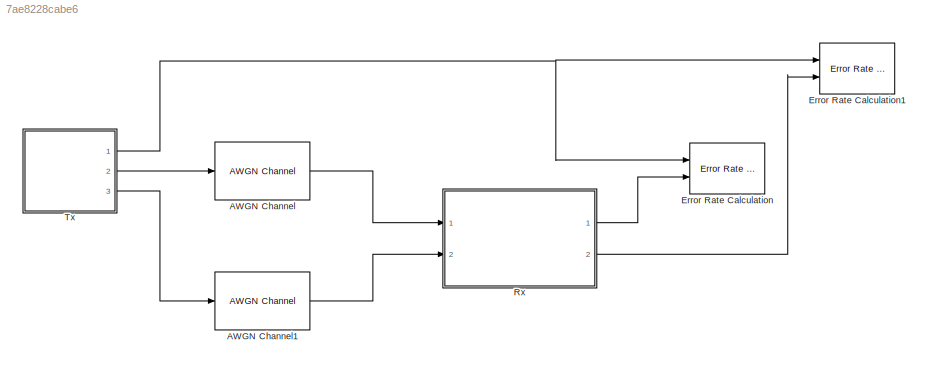
MODEL slx_7ae8228cabe6
KIND model
BLOCK [Reference] AWGN Channel  REF=commchan3/AWGN
Channel
  EbNodB = SNR
  EsNodB = 10
  InputProcessing = Columns as channels (frame based)
  Ports = [1, 1]
  Ps = 1
  SNRdB = 10
  SourceBlock = commchan3/AWGN\nChannel
  SourceType = AWGN Channel
  Tsym = 1/SymbolRate
  UserDataPersistent = on
  bitsPerSym = 2
  noiseMode = Signal to noise ratio  (Eb/No)
  seed = 67
  variance = 1
BLOCK [Reference] AWGN Channel1  REF=commchan3/AWGN
Channel
  EbNodB = SNR
  EsNodB = 10
  InputProcessing = Columns as channels (frame based)
  Ports = [1, 1]
  Ps = 1
  SNRdB = 10
  SourceBlock = commchan3/AWGN\nChannel
  SourceType = AWGN Channel
  Tsym = 1/SymbolRate
  UserDataPersistent = on
  bitsPerSym = 2
  noiseMode = Signal to noise ratio  (Eb/No)
  seed = 67
  variance = 1
BLOCK [Reference] Error Rate Calculation  REF=commsink2/Error Rate
Calculation
  N = 8
  PMode = Workspace
  Ports = [2]
  RsMode2 = off
  SourceBlock = commsink2/Error Rate\nCalculation
  SourceType = Error Rate Calculation
  WsName = BER2
  cp_mode = Entire frame
  maxBits = 1e6
  numErr = 100
  st_delay = 0
  stop = off
  subframe = []
BLOCK [Reference] Error Rate Calculation1  REF=commsink2/Error Rate
Calculation
  N = 0
  PMode = Workspace
  Ports = [2]
  RsMode2 = off
  SourceBlock = commsink2/Error Rate\nCalculation
  SourceType = Error Rate Calculation
  WsName = BER1
  cp_mode = Entire frame
  maxBits = 1e6
  numErr = 100
  st_delay = 0
  stop = off
  subframe = []
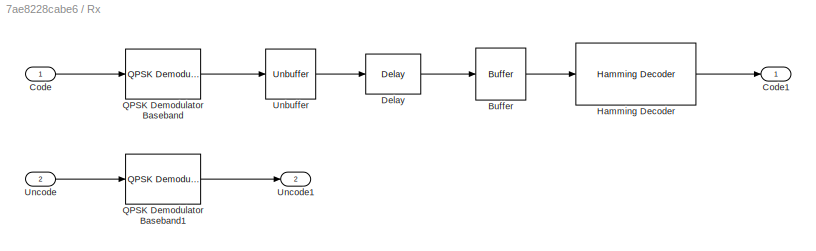
BLOCK [SubSystem] Rx
  Ports = [2, 2]
  RequestExecContextInheritance = off
BLOCK [Buffer] Rx/Buffer
  N = 7
  TreatMby1Signals = One channel
BLOCK [Inport] Rx/Code
  IconDisplay = Port number
BLOCK [Outport] Rx/Code1
  IconDisplay = Port number
BLOCK [Reference] Rx/Delay  REF=dspsigops/Delay
  InputProcessing = Columns as channels (frame based)
  Ports = [1, 1]
  SourceBlock = dspsigops/Delay
  SourceType = Delay
  UserDataPersistent = on
  delay = 5
  dif_ic_for_ch = off
  dif_ic_for_dly = off
  dly_unit = Samples
  ic = 0
  ic_detail = off
  reset_popup = None
BLOCK [Reference] Rx/Hamming Decoder  REF=commblkcod2/Hamming Decoder
  Ports = [1, 1]
  SourceBlock = commblkcod2/Hamming Decoder
  SourceType = Hamming Decoder
  k = gfprimfd(3,'min')
  n = 7
BLOCK [Reference] Rx/QPSK Demodulator Baseband  REF=commdigbbndpm3/QPSK
Demodulator
Baseband
  Dec = Gray
  DecType = Hard decision
  OutType = Bit
  Ph = pi/4
  Ports = [1, 1]
  SourceBlock = commdigbbndpm3/QPSK\nDemodulator\nBaseband
  SourceType = QPSK Demodulator Baseband
  VarSource = Dialog
  Variance = 1
  derotateFactorDTMode = Same word length as input
  derotateFactorWordLen = 16
  outDtype1 = Inherit via internal rule
  outDtype2 = Inherit via internal rule
BLOCK [Reference] Rx/QPSK Demodulator Baseband1  REF=commdigbbndpm3/QPSK
Demodulator
Baseband
  Dec = Gray
  DecType = Hard decision
  OutType = Bit
  Ph = pi/4
  Ports = [1, 1]
  SourceBlock = commdigbbndpm3/QPSK\nDemodulator\nBaseband
  SourceType = QPSK Demodulator Baseband
  VarSource = Dialog
  Variance = 1
  derotateFactorDTMode = Same word length as input
  derotateFactorWordLen = 16
  outDtype1 = Inherit via internal rule
  outDtype2 = Inherit via internal rule
BLOCK [Unbuffer] Rx/Unbuffer
  Ports = [1, 1]
  SampleBasedProcessing = Same as frame based
BLOCK [Inport] Rx/Uncode
  IconDisplay = Port number
  Port = 2
BLOCK [Outport] Rx/Uncode1
  IconDisplay = Port number
  Port = 2
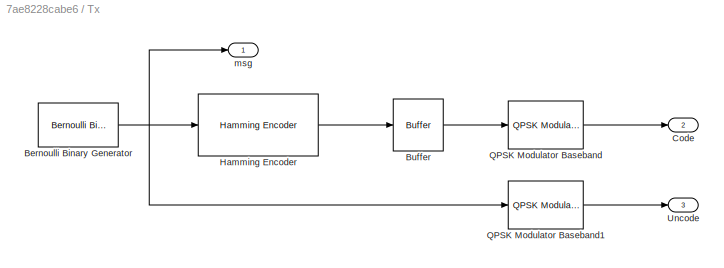
BLOCK [SubSystem] Tx
  Ports = [0, 3]
  RequestExecContextInheritance = off
BLOCK [Reference] Tx/Bernoulli Binary Generator  REF=commrandsrc2/Bernoulli Binary
Generator
  P = 0.5
  Ports = [0, 1]
  SourceBlock = commrandsrc2/Bernoulli Binary\nGenerator
  SourceType = Bernoulli Binary Generator
  Ts = 1/(2*SymbolRate)
  frameBased = on
  orient = off
  outDataType = double
  sampPerFrame = 4
  seed = 61
BLOCK [Buffer] Tx/Buffer
  N = 2
  TreatMby1Signals = One channel
BLOCK [Outport] Tx/Code
  IconDisplay = Port number
  Port = 2
BLOCK [Reference] Tx/Hamming Encoder  REF=commblkcod2/Hamming Encoder
  Ports = [1, 1]
  SourceBlock = commblkcod2/Hamming Encoder
  SourceType = Hamming Encoder
  k = gfprimfd(3,'min')
  n = 7
BLOCK [Reference] Tx/QPSK Modulator Baseband  REF=commdigbbndpm3/QPSK
Modulator
Baseband
  Enc = Gray
  InType = Bit
  Ph = pi/4
  Ports = [1, 1]
  SourceBlock = commdigbbndpm3/QPSK\nModulator\nBaseband
  SourceType = QPSK Modulator Baseband
  outDtype = double
  outFracLen = 15
  outFracLenMode = Best precision
  outUDDataType = sfix(16)
  outWordLen = 16
BLOCK [Reference] Tx/QPSK Modulator Baseband1  REF=commdigbbndpm3/QPSK
Modulator
Baseband
  Enc = Gray
  InType = Bit
  Ph = pi/4
  Ports = [1, 1]
  SourceBlock = commdigbbndpm3/QPSK\nModulator\nBaseband
  SourceType = QPSK Modulator Baseband
  outDtype = double
  outFracLen = 15
  outFracLenMode = Best precision
  outUDDataType = sfix(16)
  outWordLen = 16
BLOCK [Outport] Tx/Uncode
  IconDisplay = Port number
  Port = 3
BLOCK [Outport] Tx/msg
  IconDisplay = Port number
LINE AWGN Channel1:1 -> Rx:2
LINE AWGN Channel:1 -> Rx:1
LINE Rx/Buffer:1 -> Rx/Hamming Decoder:1
LINE Rx/Code:1 -> Rx/QPSK Demodulator Baseband:1
LINE Rx/Delay:1 -> Rx/Buffer:1
LINE Rx/Hamming Decoder:1 -> Rx/Code1:1
LINE Rx/QPSK Demodulator Baseband1:1 -> Rx/Uncode1:1
LINE Rx/QPSK Demodulator Baseband:1 -> Rx/Unbuffer:1
LINE Rx/Unbuffer:1 -> Rx/Delay:1
LINE Rx/Uncode:1 -> Rx/QPSK Demodulator Baseband1:1
LINE Rx:1 -> Error Rate Calculation:2
LINE Rx:2 -> Error Rate Calculation1:2
NET Tx/Bernoulli Binary Generator:1 -> Tx/Hamming Encoder:1, Tx/QPSK Modulator Baseband1:1, Tx/msg:1
LINE Tx/Buffer:1 -> Tx/QPSK Modulator Baseband:1
LINE Tx/Hamming Encoder:1 -> Tx/Buffer:1
LINE Tx/QPSK Modulator Baseband1:1 -> Tx/Uncode:1
LINE Tx/QPSK Modulator Baseband:1 -> Tx/Code:1
NET Tx:1 -> Error Rate Calculation1:1, Error Rate Calculation:1
LINE Tx:2 -> AWGN Channel:1
LINE Tx:3 -> AWGN Channel1:1
note: NET lines group one-source signal fan-out (src -> all destinations, sorted); 1:1 wires keep LINE
